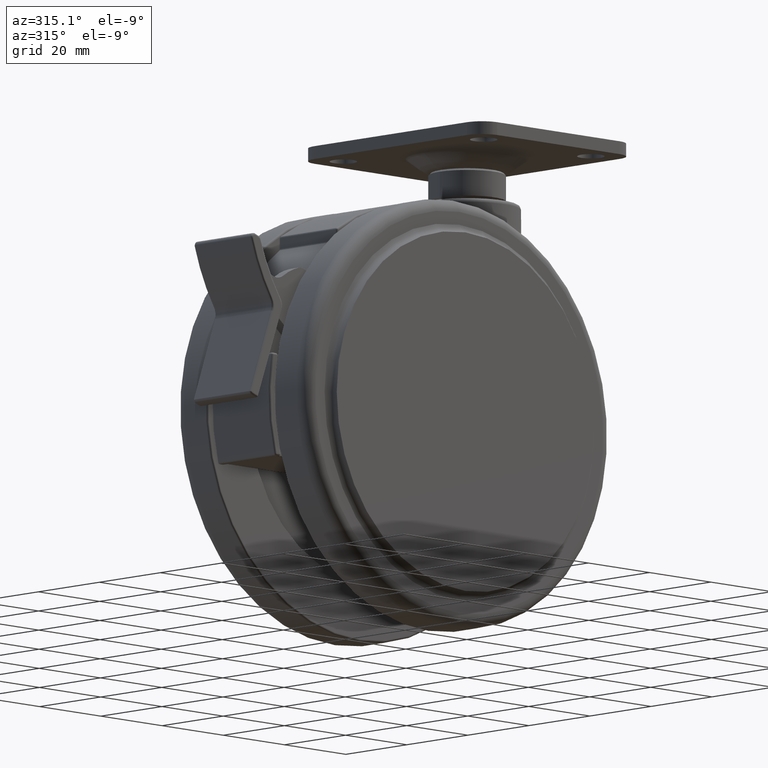
[diagram: clean part render]
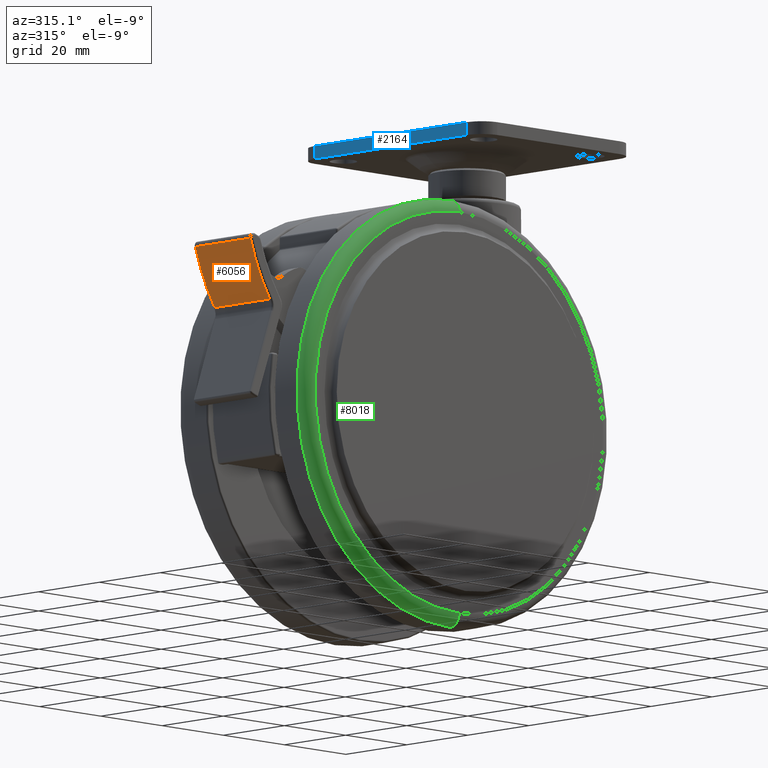
[diagram: same view with three faces highlighted in distinct colors, each labeled with its STEP entity id]
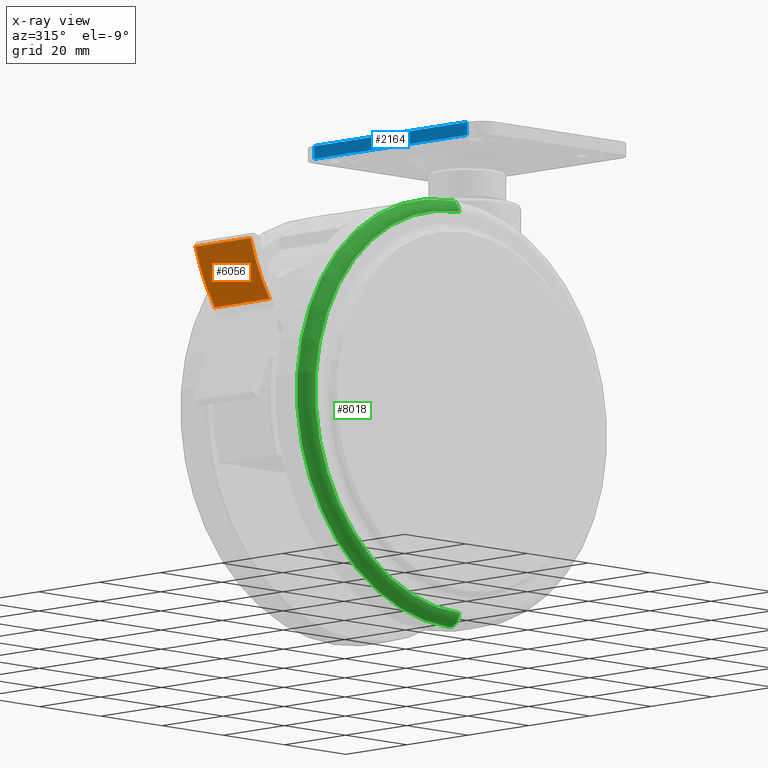
[diagram: x-ray of the same camera — body ghosted, the three highlighted faces saturated]
A machine part, auxiliary view with three faces highlighted in distinct colors.
The next image is the same camera in x-ray (body ghosted, the three faces saturated) — at least one of them is partly hidden behind the body in this view.
Their STEP definitions:

[orange] entity #6056 — the highlighted cylindrical surface (partial cylindrical patch) has radius 50.5 mm, axis along (0, -1, 0).
#71 = VERTEX_POINT ( 'NONE', #1741 ) ;
#84 = CARTESIAN_POINT ( 'NONE',  ( -73.46611147315499600, 990.5000000000000000, -31.00804792243064900 ) ) ;
#249 = VERTEX_POINT ( 'NONE', #8217 ) ;
#468 = EDGE_CURVE ( 'NONE', #3886, #483, #1954, .T. ) ;
#483 = VERTEX_POINT ( 'NONE', #807 ) ;
#807 = CARTESIAN_POINT ( 'NONE',  ( -73.46611147315499600, 8.999999999999900500, -31.00804792243064900 ) ) ;
#959 = CARTESIAN_POINT ( 'NONE',  ( -31.28781473974764900, -8.999999999999788600, -3.236816680934794900 ) ) ;
#1170 = CYLINDRICAL_SURFACE ( 'NONE', #4695, 50.50000000000000000 ) ;
#1301 = AXIS2_PLACEMENT_3D ( 'NONE', #959, #5592, #1614 ) ;
#1489 = DIRECTION ( 'NONE',  ( -8.244230380879875700E-016, 0.0000000000000000000, 1.000000000000000000 ) ) ;
#1508 = DIRECTION ( 'NONE',  ( 0.0000000000000000000, -1.000000000000000000, 0.0000000000000000000 ) ) ;
#1548 = ORIENTED_EDGE ( 'NONE', *, *, #3020, .T. ) ;
#1614 = DIRECTION ( 'NONE',  ( 0.0000000000000000000, 0.0000000000000000000, 1.000000000000000000 ) ) ;
#1741 = CARTESIAN_POINT ( 'NONE',  ( -79.74220196484520800, -8.999999999999788600, -17.46433785084695200 ) ) ;
#1954 = CIRCLE ( 'NONE', #8020, 50.50000000000000000 ) ;
#2163 = CARTESIAN_POINT ( 'NONE',  ( -31.28781473974764900, 8.999999999999900500, -3.236816680934794900 ) ) ;
#2279 = ORIENTED_EDGE ( 'NONE', *, *, #8332, .T. ) ;
#2676 = EDGE_CURVE ( 'NONE', #249, #71, #3164, .T. ) ;
#2795 = VECTOR ( 'NONE', #4813, 1000.000000000000000 ) ;
#2796 = ORIENTED_EDGE ( 'NONE', *, *, #2676, .T. ) ;
#3020 = EDGE_CURVE ( 'NONE', #71, #3886, #4541, .T. ) ;
#3164 = CIRCLE ( 'NONE', #1301, 50.50000000000000000 ) ;
#3486 = CARTESIAN_POINT ( 'NONE',  ( -79.74220196484520800, 990.5000000000000000, -17.46433785084695200 ) ) ;
#3504 = DIRECTION ( 'NONE',  ( -0.0000000000000000000, -1.000000000000000000, -0.0000000000000000000 ) ) ;
#3531 = CARTESIAN_POINT ( 'NONE',  ( -31.28781473974764900, 990.5000000000000000, -3.236816680934794900 ) ) ;
#3886 = VERTEX_POINT ( 'NONE', #4672 ) ;
#4177 = DIRECTION ( 'NONE',  ( 0.0000000000000000000, 0.0000000000000000000, -1.000000000000000000 ) ) ;
#4336 = VECTOR ( 'NONE', #4693, 1000.000000000000000 ) ;
#4541 = LINE ( 'NONE', #3486, #2795 ) ;
#4672 = CARTESIAN_POINT ( 'NONE',  ( -79.74220196484520800, 8.999999999999900500, -17.46433785084695200 ) ) ;
#4693 = DIRECTION ( 'NONE',  ( 0.0000000000000000000, -1.000000000000000000, 0.0000000000000000000 ) ) ;
#4695 = AXIS2_PLACEMENT_3D ( 'NONE', #3531, #1508, #4177 ) ;
#4813 = DIRECTION ( 'NONE',  ( -0.0000000000000000000, 1.000000000000000000, -0.0000000000000000000 ) ) ;
#5592 = DIRECTION ( 'NONE',  ( 0.0000000000000000000, 1.000000000000000000, 0.0000000000000000000 ) ) ;
#6056 = ADVANCED_FACE ( 'NONE', ( #6482 ), #1170, .T. ) ;
#6123 = LINE ( 'NONE', #84, #4336 ) ;
#6482 = FACE_OUTER_BOUND ( 'NONE', #7967, .T. ) ;
#7967 = EDGE_LOOP ( 'NONE', ( #1548, #8003, #2279, #2796 ) ) ;
#8003 = ORIENTED_EDGE ( 'NONE', *, *, #468, .T. ) ;
#8020 = AXIS2_PLACEMENT_3D ( 'NONE', #2163, #3504, #1489 ) ;
#8217 = CARTESIAN_POINT ( 'NONE',  ( -73.46611147315499600, -8.999999999999788600, -31.00804792243064900 ) ) ;
#8332 = EDGE_CURVE ( 'NONE', #483, #249, #6123, .T. ) ;

[blue] entity #2164 — the highlighted planar face has unit normal (1, 0, 0).
#5 = DIRECTION ( 'NONE',  ( 1.000000000000000000, 0.0000000000000000000, 0.0000000000000000000 ) ) ;
#89 = CARTESIAN_POINT ( 'NONE',  ( -25.00000000000000000, 24.99999999999689800, 11.00000000000011900 ) ) ;
#812 = VECTOR ( 'NONE', #2207, 1000.000000000000000 ) ;
#1303 = VECTOR ( 'NONE', #1857, 1000.000000000000000 ) ;
#1726 = LINE ( 'NONE', #3840, #1303 ) ;
#1767 = VERTEX_POINT ( 'NONE', #3140 ) ;
#1857 = DIRECTION ( 'NONE',  ( -0.0000000000000000000, -1.000000000000000000, -0.0000000000000000000 ) ) ;
#2164 = ADVANCED_FACE ( 'NONE', ( #6495 ), #3961, .F. ) ;
#2205 = LINE ( 'NONE', #4787, #7317 ) ;
#2207 = DIRECTION ( 'NONE',  ( -0.0000000000000000000, -1.000000000000000000, -0.0000000000000000000 ) ) ;
#2465 = LINE ( 'NONE', #8035, #4219 ) ;
#2579 = LINE ( 'NONE', #3552, #812 ) ;
#3061 = EDGE_CURVE ( 'NONE', #4372, #8589, #2579, .T. ) ;
#3140 = CARTESIAN_POINT ( 'NONE',  ( -25.00000000000000000, -25.00000000000000000, 11.00000000000011900 ) ) ;
#3343 = ORIENTED_EDGE ( 'NONE', *, *, #3898, .F. ) ;
#3383 = DIRECTION ( 'NONE',  ( 0.0000000000000000000, 0.0000000000000000000, -1.000000000000000000 ) ) ;
#3435 = DIRECTION ( 'NONE',  ( 0.0000000000000000000, 0.0000000000000000000, -1.000000000000000000 ) ) ;
#3552 = CARTESIAN_POINT ( 'NONE',  ( -25.00000000000000000, 25.00000000000000000, 14.00000000000000000 ) ) ;
#3840 = CARTESIAN_POINT ( 'NONE',  ( -25.00000000000000000, 25.00000000000000000, 11.00000000000011900 ) ) ;
#3898 = EDGE_CURVE ( 'NONE', #8589, #1767, #2465, .T. ) ;
#3905 = VERTEX_POINT ( 'NONE', #89 ) ;
#3961 = PLANE ( 'NONE',  #7160 ) ;
#4219 = VECTOR ( 'NONE', #3383, 1000.000000000000000 ) ;
#4260 = EDGE_CURVE ( 'NONE', #3905, #1767, #1726, .T. ) ;
#4352 = CARTESIAN_POINT ( 'NONE',  ( -25.00000000000000000, -25.00000000000000000, 14.00000000000000000 ) ) ;
#4372 = VERTEX_POINT ( 'NONE', #8142 ) ;
#4571 = ORIENTED_EDGE ( 'NONE', *, *, #4260, .T. ) ;
#4614 = DIRECTION ( 'NONE',  ( 0.0000000000000000000, 0.0000000000000000000, -1.000000000000000000 ) ) ;
#4787 = CARTESIAN_POINT ( 'NONE',  ( -25.00000000000000000, 24.99999999999689800, 1010.999999999999900 ) ) ;
#5259 = CARTESIAN_POINT ( 'NONE',  ( -25.00000000000000000, 25.00000000000000000, 1010.999999999999900 ) ) ;
#6432 = EDGE_CURVE ( 'NONE', #4372, #3905, #2205, .T. ) ;
#6495 = FACE_OUTER_BOUND ( 'NONE', #6759, .T. ) ;
#6759 = EDGE_LOOP ( 'NONE', ( #4571, #3343, #7457, #8211 ) ) ;
#7160 = AXIS2_PLACEMENT_3D ( 'NONE', #5259, #5, #4614 ) ;
#7317 = VECTOR ( 'NONE', #3435, 1000.000000000000000 ) ;
#7457 = ORIENTED_EDGE ( 'NONE', *, *, #3061, .F. ) ;
#8035 = CARTESIAN_POINT ( 'NONE',  ( -25.00000000000000000, -25.00000000000000000, 1010.999999999999900 ) ) ;
#8142 = CARTESIAN_POINT ( 'NONE',  ( -25.00000000000000000, 24.99999999999689800, 14.00000000000000000 ) ) ;
#8211 = ORIENTED_EDGE ( 'NONE', *, *, #6432, .T. ) ;
#8589 = VERTEX_POINT ( 'NONE', #4352 ) ;

[green] entity #8018 — the highlighted toroidal blend (fillet) surface has major radius 47 mm and minor (blend) radius 3 mm.
#120 = ORIENTED_EDGE ( 'NONE', *, *, #6242, .F. ) ;
#428 = DIRECTION ( 'NONE',  ( 0.0000000000000000000, 0.0000000000000000000, -1.000000000000000000 ) ) ;
#637 = EDGE_CURVE ( 'NONE', #4557, #7023, #1220, .T. ) ;
#989 = AXIS2_PLACEMENT_3D ( 'NONE', #8385, #4375, #428 ) ;
#1149 = CARTESIAN_POINT ( 'NONE',  ( -24.00000000000000000, -18.50000000000000000, -100.5000000000000000 ) ) ;
#1220 = CIRCLE ( 'NONE', #3837, 3.000000000000002700 ) ;
#1327 = DIRECTION ( 'NONE',  ( -1.000000000000000000, -0.0000000000000000000, -0.0000000000000000000 ) ) ;
#1353 = DIRECTION ( 'NONE',  ( 0.0000000000000000000, 0.0000000000000000000, -1.000000000000000000 ) ) ;
#1409 = VERTEX_POINT ( 'NONE', #4703 ) ;
#1476 = CIRCLE ( 'NONE', #8122, 47.00000000000000700 ) ;
#2657 = EDGE_LOOP ( 'NONE', ( #120, #6488, #4532, #8553 ) ) ;
#2737 = CARTESIAN_POINT ( 'NONE',  ( -24.00000000000000000, -21.50000000000000000, -53.50000000000000000 ) ) ;
#3045 = CARTESIAN_POINT ( 'NONE',  ( -24.00000000000000000, -21.50000000000000000, -100.5000000000000000 ) ) ;
#3390 = CARTESIAN_POINT ( 'NONE',  ( -24.00000000000000000, -18.50000000000000000, -53.50000000000000000 ) ) ;
#3411 = DIRECTION ( 'NONE',  ( 0.0000000000000000000, 0.0000000000000000000, -1.000000000000000000 ) ) ;
#3460 = CIRCLE ( 'NONE', #989, 2.999999999999999100 ) ;
#3837 = AXIS2_PLACEMENT_3D ( 'NONE', #1149, #1327, #8327 ) ;
#3989 = DIRECTION ( 'NONE',  ( 0.0000000000000000000, -1.000000000000000000, 0.0000000000000000000 ) ) ;
#4049 = DIRECTION ( 'NONE',  ( 0.0000000000000000000, 0.0000000000000000000, -1.000000000000000000 ) ) ;
#4375 = DIRECTION ( 'NONE',  ( 1.000000000000000000, 0.0000000000000000000, -1.224646799147353200E-016 ) ) ;
#4532 = ORIENTED_EDGE ( 'NONE', *, *, #637, .T. ) ;
#4557 = VERTEX_POINT ( 'NONE', #4993 ) ;
#4668 = CARTESIAN_POINT ( 'NONE',  ( -23.99999999999999300, -18.50000000000000000, -3.499999999999997300 ) ) ;
#4703 = CARTESIAN_POINT ( 'NONE',  ( -23.99999999999999300, -21.50000000000000000, -6.499999999999999100 ) ) ;
#4993 = CARTESIAN_POINT ( 'NONE',  ( -24.00000000000000000, -18.50000000000000000, -103.5000000000000100 ) ) ;
#5076 = CIRCLE ( 'NONE', #7239, 50.00000000000000700 ) ;
#5278 = TOROIDAL_SURFACE ( 'NONE', #6353, 47.00000000000000000, 3.000000000000000000 ) ;
#6242 = EDGE_CURVE ( 'NONE', #8340, #1409, #3460, .T. ) ;
#6353 = AXIS2_PLACEMENT_3D ( 'NONE', #7953, #3989, #1353 ) ;
#6372 = EDGE_CURVE ( 'NONE', #1409, #7023, #1476, .T. ) ;
#6488 = ORIENTED_EDGE ( 'NONE', *, *, #8036, .T. ) ;
#7023 = VERTEX_POINT ( 'NONE', #3045 ) ;
#7070 = FACE_OUTER_BOUND ( 'NONE', #2657, .T. ) ;
#7239 = AXIS2_PLACEMENT_3D ( 'NONE', #3390, #8043, #4049 ) ;
#7397 = DIRECTION ( 'NONE',  ( 0.0000000000000000000, -1.000000000000000000, 0.0000000000000000000 ) ) ;
#7953 = CARTESIAN_POINT ( 'NONE',  ( -24.00000000000000000, -18.50000000000000000, -53.50000000000000000 ) ) ;
#8018 = ADVANCED_FACE ( 'NONE', ( #7070 ), #5278, .T. ) ;
#8036 = EDGE_CURVE ( 'NONE', #8340, #4557, #5076, .T. ) ;
#8043 = DIRECTION ( 'NONE',  ( 0.0000000000000000000, -1.000000000000000000, 0.0000000000000000000 ) ) ;
#8122 = AXIS2_PLACEMENT_3D ( 'NONE', #2737, #7397, #3411 ) ;
#8327 = DIRECTION ( 'NONE',  ( 0.0000000000000000000, 0.0000000000000000000, 1.000000000000000000 ) ) ;
#8340 = VERTEX_POINT ( 'NONE', #4668 ) ;
#8385 = CARTESIAN_POINT ( 'NONE',  ( -23.99999999999999300, -18.50000000000000000, -6.499999999999999100 ) ) ;
#8553 = ORIENTED_EDGE ( 'NONE', *, *, #6372, .F. ) ;